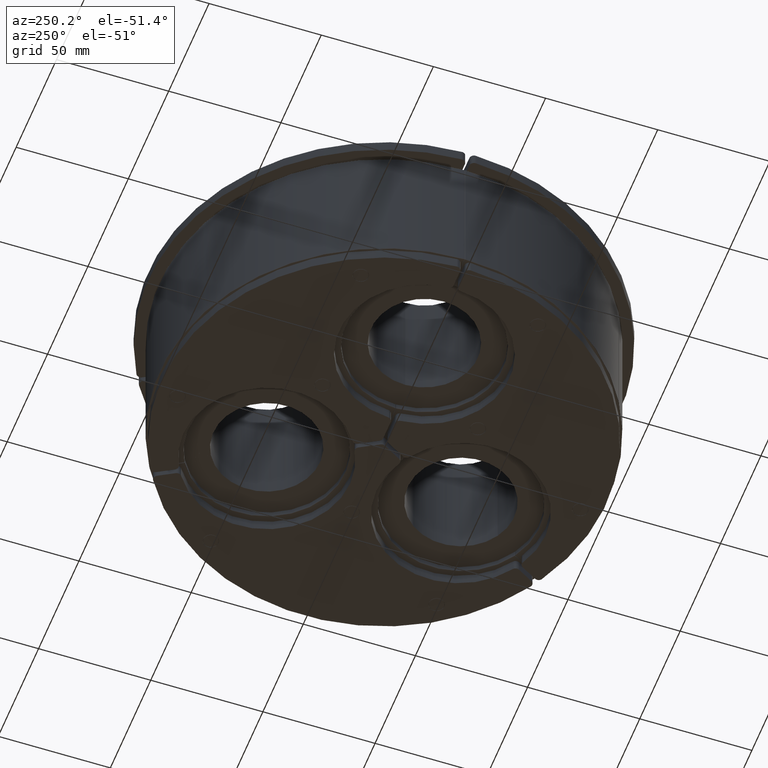
[diagram: clean part render]
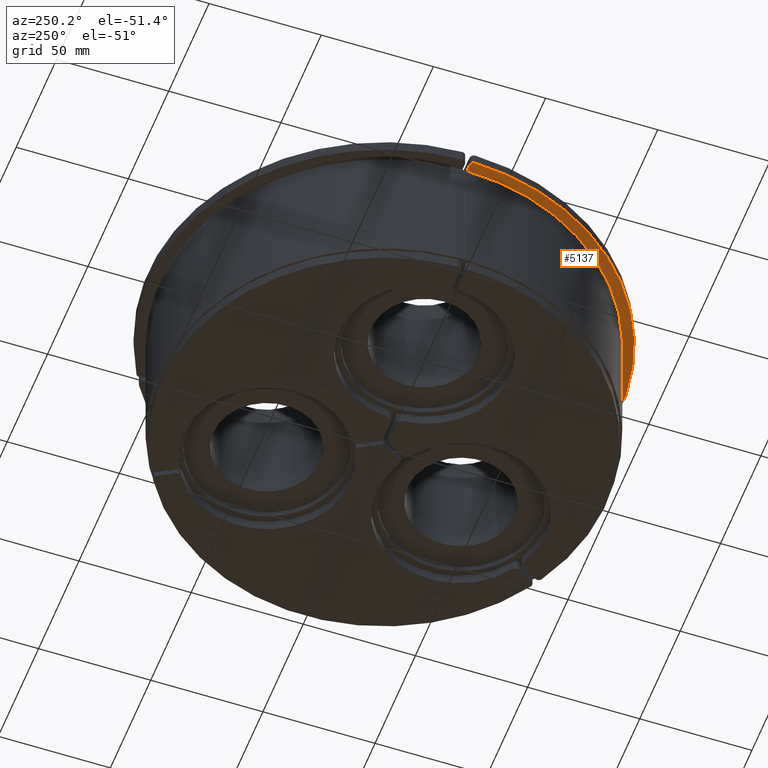
[diagram: same view with one face highlighted and labeled with its STEP entity id]
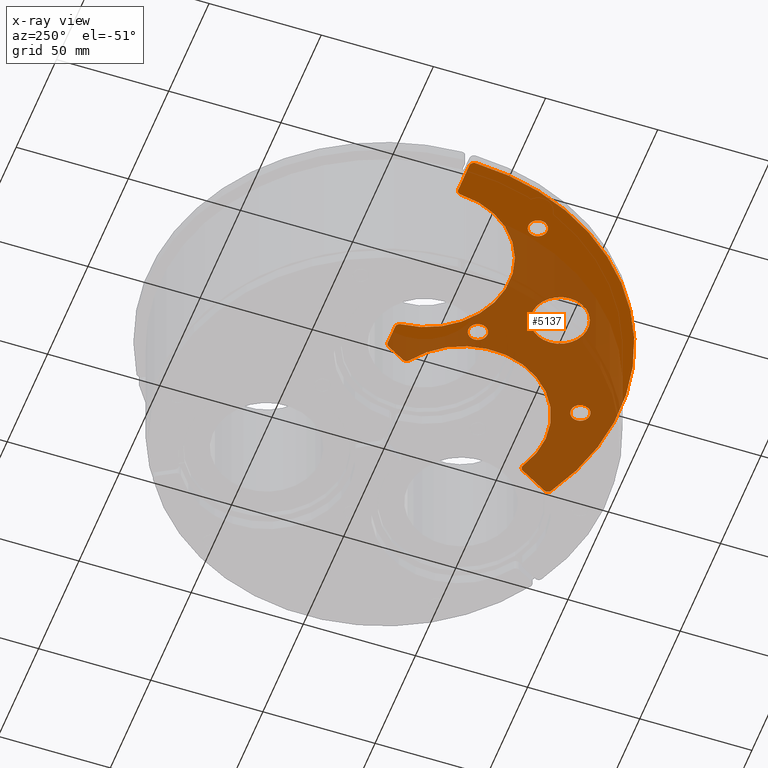
[diagram: x-ray of the same camera — body ghosted, the highlighted face saturated]
A machine part, auxiliary view. The second image highlights one B-rep face of the part: STEP entity #5137.
The next image is the same camera in x-ray: the body ghosted, the highlighted face saturated — about 66% of this face is hidden behind the body in this view.
In plain terms, the highlighted planar face has unit normal (0, 0, -1).
Its self-contained STEP definition (entity closure, byte-faithful):
#4904=CARTESIAN_POINT('',(-25.000000000000004,64.951905283832886,5.0));
#4905=VERTEX_POINT('',#4904);
#4906=CARTESIAN_POINT('',(-37.500000000000007,64.951905283832886,5.0));
#4907=DIRECTION('',(0.0,0.0,-1.0));
#4908=DIRECTION('',(-1.0,0.0,0.0));
#4909=AXIS2_PLACEMENT_3D('',#4906,#4907,#4908);
#4910=CIRCLE('',#4909,12.5);
#4911=EDGE_CURVE('',#4905,#4905,#4910,.T.);
#4921=CARTESIAN_POINT('',(49.829202153651181,92.423214685113464,5.0));
#4922=VERTEX_POINT('',#4921);
#4923=CARTESIAN_POINT('',(50.612125301150513,89.6627725006351,5.0));
#4924=VERTEX_POINT('',#4923);
#4925=CARTESIAN_POINT('',(48.880074493581624,90.662772500635086,5.0));
#4926=DIRECTION('',(0.0,0.0,-1.0));
#4927=DIRECTION('',(0.962053761139921,0.27285996532385,0.0));
#4928=AXIS2_PLACEMENT_3D('',#4925,#4926,#4927);
#4929=CIRCLE('',#4928,2.0);
#4930=EDGE_CURVE('',#4922,#4924,#4929,.T.);
#4964=CARTESIAN_POINT('',(43.603316190265943,77.523159020031343,5.0));
#4965=VERTEX_POINT('',#4964);
#4966=CARTESIAN_POINT('',(50.612125301150513,89.6627725006351,5.0));
#4967=DIRECTION('',(-0.499999999999999,-0.866025403784439,0.0));
#4968=VECTOR('',#4967,14.017618221769171);
#4969=LINE('',#4966,#4968);
#4970=EDGE_CURVE('',#4924,#4965,#4969,.T.);
#4989=CARTESIAN_POINT('',(-28.062812156069281,48.606216457573474,5.0));
#4990=DIRECTION('',(0.0,0.0,1.0));
#4991=DIRECTION('',(1.0,0.0,0.0));
#4992=AXIS2_PLACEMENT_3D('',#4989,#4990,#4991);
#4993=PLANE('',#4992);
#4994=ORIENTED_EDGE('',*,*,#4930,.F.);
#4995=CARTESIAN_POINT('',(-104.95545289355682,3.058252427184482,5.0));
#4996=VERTEX_POINT('',#4995);
#4997=CARTESIAN_POINT('',(0.0,0.0,5.0));
#4998=DIRECTION('',(0.0,0.0,-1.0));
#4999=DIRECTION('',(0.491729462760402,0.870748032127185,0.0));
#5000=AXIS2_PLACEMENT_3D('',#4997,#4998,#4999);
#5001=CIRCLE('',#5000,105.00000000000001);
#5002=EDGE_CURVE('',#4996,#4922,#5001,.T.);
#5003=ORIENTED_EDGE('',*,*,#5002,.F.);
#5004=CARTESIAN_POINT('',(-102.95630140987002,1.0,5.0));
#5005=VERTEX_POINT('',#5004);
#5006=CARTESIAN_POINT('',(-102.95630140987002,3.000000000000016,5.0));
#5007=DIRECTION('',(0.0,0.0,-1.0));
#5008=DIRECTION('',(-0.717330542216145,-0.696733014291623,0.0));
#5009=AXIS2_PLACEMENT_3D('',#5006,#5007,#5008);
#5010=CIRCLE('',#5009,2.0);
#5011=EDGE_CURVE('',#5005,#4996,#5010,.T.);
#5012=ORIENTED_EDGE('',*,*,#5011,.F.);
#5013=CARTESIAN_POINT('',(-88.938683188100853,1.0,5.0));
#5014=VERTEX_POINT('',#5013);
#5015=CARTESIAN_POINT('',(-88.938683188100853,1.0,5.0));
#5016=DIRECTION('',(-1.0,0.0,0.0));
#5017=VECTOR('',#5016,14.017618221769169);
#5018=LINE('',#5015,#5017);
#5019=EDGE_CURVE('',#5014,#5005,#5018,.T.);
#5020=ORIENTED_EDGE('',*,*,#5019,.F.);
#5021=CARTESIAN_POINT('',(-86.941314768187979,2.897435897435897,5.0));
#5022=VERTEX_POINT('',#5021);
#5023=CARTESIAN_POINT('',(-88.938683188100853,3.0,5.0));
#5024=DIRECTION('',(0.0,0.0,-1.0));
#5025=DIRECTION('',(0.688737231721198,-0.725011052081981,0.0));
#5026=AXIS2_PLACEMENT_3D('',#5023,#5024,#5025);
#5027=CIRCLE('',#5026,2.0);
#5028=EDGE_CURVE('',#5022,#5014,#5027,.T.);
#5029=ORIENTED_EDGE('',*,*,#5028,.F.);
#5030=CARTESIAN_POINT('',(-13.038683231411925,2.897435897435891,5.0));
#5031=VERTEX_POINT('',#5030);
#5032=CARTESIAN_POINT('',(-49.989998999799951,1.0,5.0));
#5033=DIRECTION('',(0.0,0.0,-1.0));
#5034=DIRECTION('',(-1.0,0.0,0.0));
#5035=AXIS2_PLACEMENT_3D('',#5032,#5033,#5034);
#5036=CIRCLE('',#5035,37.0);
#5037=EDGE_CURVE('',#5022,#5031,#5036,.T.);
#5038=ORIENTED_EDGE('',*,*,#5037,.T.);
#5039=CARTESIAN_POINT('',(-11.041314811499046,1.0,5.0));
#5040=VERTEX_POINT('',#5039);
#5041=CARTESIAN_POINT('',(-11.041314811499049,2.999999999999993,5.0));
#5042=DIRECTION('',(0.0,0.0,-1.0));
#5043=DIRECTION('',(-0.688737231721196,-0.725011052081983,0.0));
#5044=AXIS2_PLACEMENT_3D('',#5041,#5042,#5043);
#5045=CIRCLE('',#5044,2.0);
#5046=EDGE_CURVE('',#5040,#5031,#5045,.T.);
#5047=ORIENTED_EDGE('',*,*,#5046,.F.);
#5048=CARTESIAN_POINT('',(-1.732050807568868,1.0,5.0));
#5049=VERTEX_POINT('',#5048);
#5050=CARTESIAN_POINT('',(-1.732050807568868,1.0,5.0));
#5051=DIRECTION('',(-1.0,0.0,0.0));
#5052=VECTOR('',#5051,9.309264003930181);
#5053=LINE('',#5050,#5052);
#5054=EDGE_CURVE('',#5049,#5040,#5053,.T.);
#5055=ORIENTED_EDGE('',*,*,#5054,.F.);
#5056=CARTESIAN_POINT('',(7.910339E-015,2.00000000000001,5.0));
#5057=VERTEX_POINT('',#5056);
#5058=CARTESIAN_POINT('',(-1.732050807568868,3.000000000000007,5.0));
#5059=DIRECTION('',(0.0,0.0,-1.0));
#5060=DIRECTION('',(0.499999999999999,-0.86602540378444,0.0));
#5061=AXIS2_PLACEMENT_3D('',#5058,#5059,#5060);
#5062=CIRCLE('',#5061,2.0);
#5063=EDGE_CURVE('',#5057,#5049,#5062,.T.);
#5064=ORIENTED_EDGE('',*,*,#5063,.F.);
#5065=CARTESIAN_POINT('',(4.654632001965089,10.062059117939581,5.0));
#5066=VERTEX_POINT('',#5065);
#5067=CARTESIAN_POINT('',(4.65463200196509,10.062059117939583,5.0));
#5068=DIRECTION('',(-0.499999999999999,-0.866025403784439,0.0));
#5069=VECTOR('',#5068,9.309264003930174);
#5070=LINE('',#5067,#5069);
#5071=EDGE_CURVE('',#5066,#5057,#5070,.T.);
#5072=ORIENTED_EDGE('',*,*,#5071,.F.);
#5073=CARTESIAN_POINT('',(4.010088522689514,12.740548859018862,5.0));
#5074=VERTEX_POINT('',#5073);
#5075=CARTESIAN_POINT('',(2.922581194396212,11.062059117939578,5.0));
#5076=DIRECTION('',(0.0,0.0,-1.0));
#5077=DIRECTION('',(0.972246604988078,0.233958413161734,0.0));
#5078=AXIS2_PLACEMENT_3D('',#5075,#5076,#5077);
#5079=CIRCLE('',#5078,2.0);
#5080=EDGE_CURVE('',#5074,#5066,#5079,.T.);
#5081=ORIENTED_EDGE('',*,*,#5080,.F.);
#5082=CARTESIAN_POINT('',(40.961404291077478,76.742105176387966,5.0));
#5083=VERTEX_POINT('',#5082);
#5084=CARTESIAN_POINT('',(24.128974096115513,43.792609068985456,5.0));
#5085=DIRECTION('',(0.0,0.0,-1.0));
#5086=DIRECTION('',(-1.0,0.0,0.0));
#5087=AXIS2_PLACEMENT_3D('',#5084,#5085,#5086);
#5088=CIRCLE('',#5087,37.0);
#5089=EDGE_CURVE('',#5074,#5083,#5088,.T.);
#5090=ORIENTED_EDGE('',*,*,#5089,.T.);
#5091=CARTESIAN_POINT('',(41.871265382697054,78.523159020031343,5.0));
#5092=DIRECTION('',(0.0,0.0,-1.0));
#5093=DIRECTION('',(0.283509373266886,-0.958969465243715,0.0));
#5094=AXIS2_PLACEMENT_3D('',#5091,#5092,#5093);
#5095=CIRCLE('',#5094,2.0);
#5096=EDGE_CURVE('',#4965,#5083,#5095,.T.);
#5097=ORIENTED_EDGE('',*,*,#5096,.F.);
#5098=ORIENTED_EDGE('',*,*,#4970,.F.);
#5099=EDGE_LOOP('',(#4994,#5003,#5012,#5020,#5029,#5038,#5047,#5055,#5064,#5072,#5081,#5090,#5097,#5098));
#5100=FACE_OUTER_BOUND('',#5099,.T.);
#5101=ORIENTED_EDGE('',*,*,#4911,.T.);
#5102=EDGE_LOOP('',(#5101));
#5103=FACE_BOUND('',#5102,.T.);
#5104=CARTESIAN_POINT('',(-76.641464166925005,39.453403211016962,5.0));
#5105=VERTEX_POINT('',#5104);
#5106=CARTESIAN_POINT('',(-80.891464166925005,39.453403211016962,5.0));
#5107=DIRECTION('',(0.0,0.0,-1.0));
#5108=DIRECTION('',(-1.0,0.0,0.0));
#5109=AXIS2_PLACEMENT_3D('',#5106,#5107,#5108);
#5110=CIRCLE('',#5109,4.250000000000004);
#5111=EDGE_CURVE('',#5105,#5105,#5110,.T.);
#5112=ORIENTED_EDGE('',*,*,#5111,.T.);
#5113=EDGE_LOOP('',(#5112));
#5114=FACE_BOUND('',#5113,.T.);
#5115=CARTESIAN_POINT('',(-15.750000000000012,34.641016151377542,5.0));
#5116=VERTEX_POINT('',#5115);
#5117=CARTESIAN_POINT('',(-20.000000000000014,34.641016151377542,5.0));
#5118=DIRECTION('',(0.0,0.0,-1.0));
#5119=DIRECTION('',(-1.0,0.0,0.0));
#5120=AXIS2_PLACEMENT_3D('',#5117,#5118,#5119);
#5121=CIRCLE('',#5120,4.25);
#5122=EDGE_CURVE('',#5116,#5116,#5121,.T.);
#5123=ORIENTED_EDGE('',*,*,#5122,.T.);
#5124=EDGE_LOOP('',(#5123));
#5125=FACE_BOUND('',#5124,.T.);
#5126=CARTESIAN_POINT('',(10.528082636971289,89.780764523384192,5.0));
#5127=VERTEX_POINT('',#5126);
#5128=CARTESIAN_POINT('',(6.278082636971289,89.780764523384192,5.0));
#5129=DIRECTION('',(0.0,0.0,-1.0));
#5130=DIRECTION('',(-1.0,0.0,0.0));
#5131=AXIS2_PLACEMENT_3D('',#5128,#5129,#5130);
#5132=CIRCLE('',#5131,4.25);
#5133=EDGE_CURVE('',#5127,#5127,#5132,.T.);
#5134=ORIENTED_EDGE('',*,*,#5133,.T.);
#5135=EDGE_LOOP('',(#5134));
#5136=FACE_BOUND('',#5135,.T.);
#5137=ADVANCED_FACE('',(#5100,#5103,#5114,#5125,#5136),#4993,.T.);